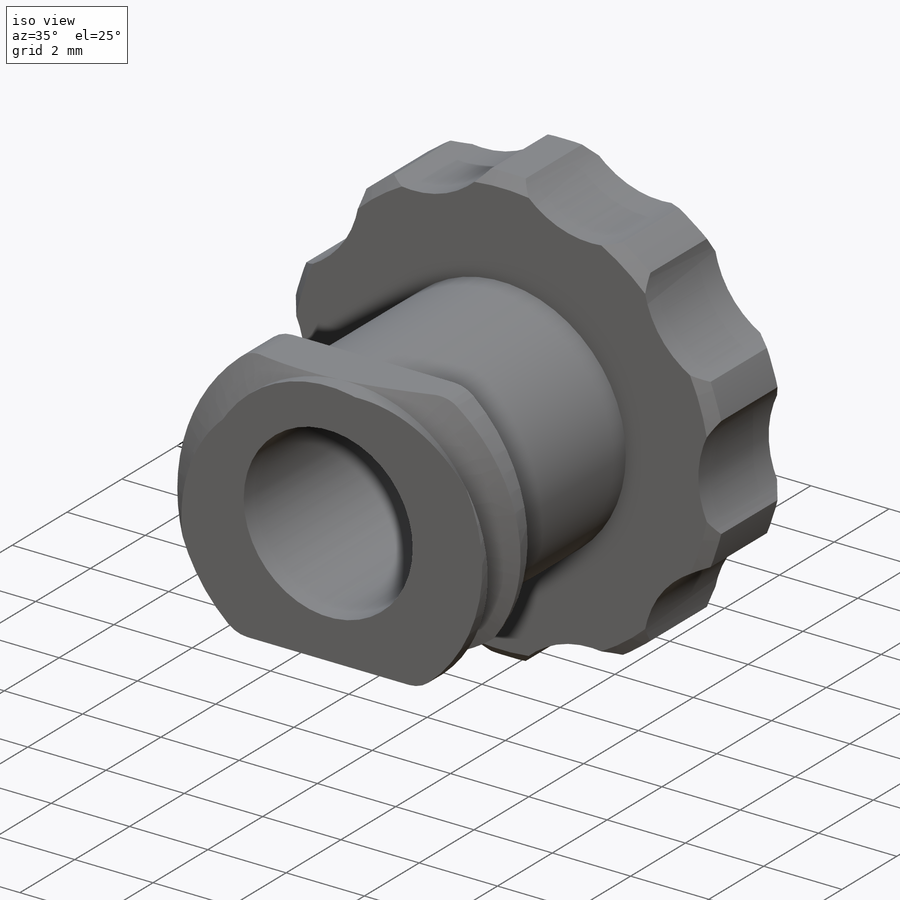
[diagram: iso view]
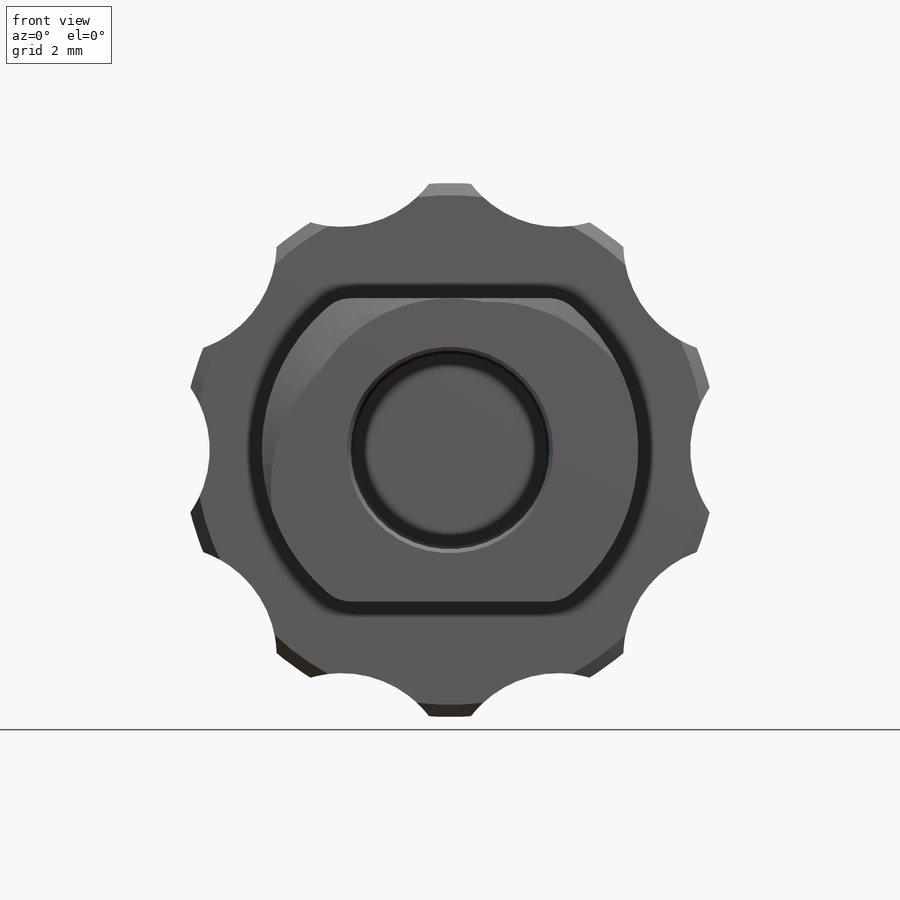
[diagram: front view]
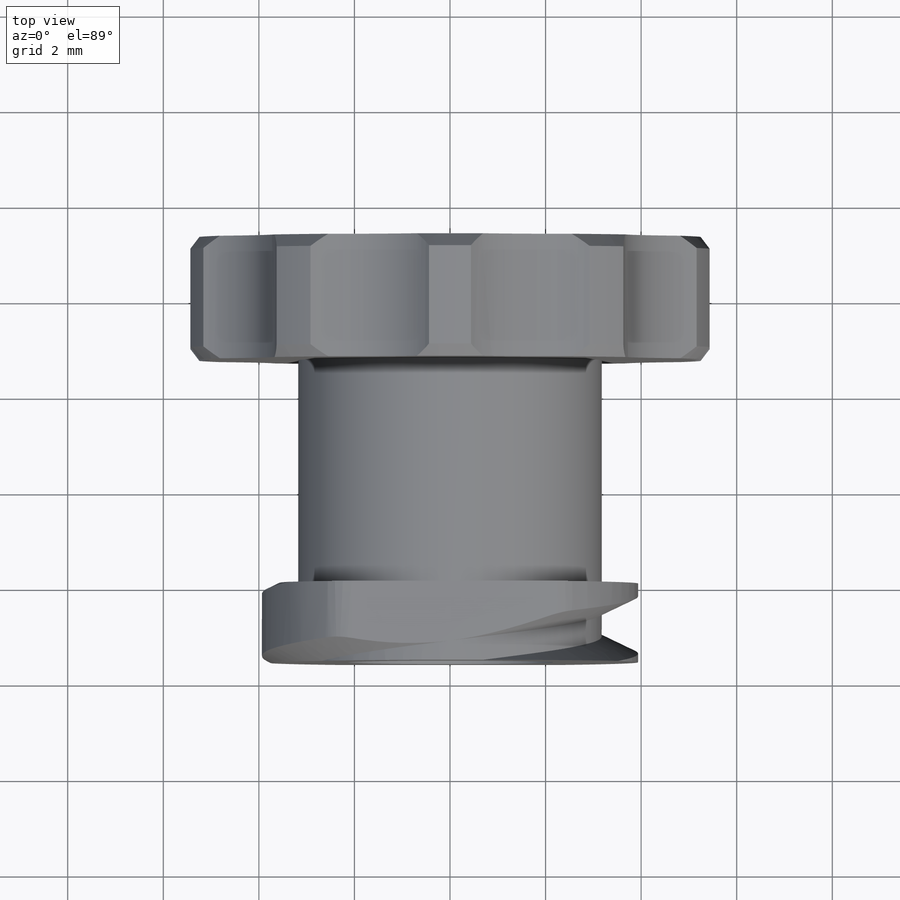
[diagram: top view]
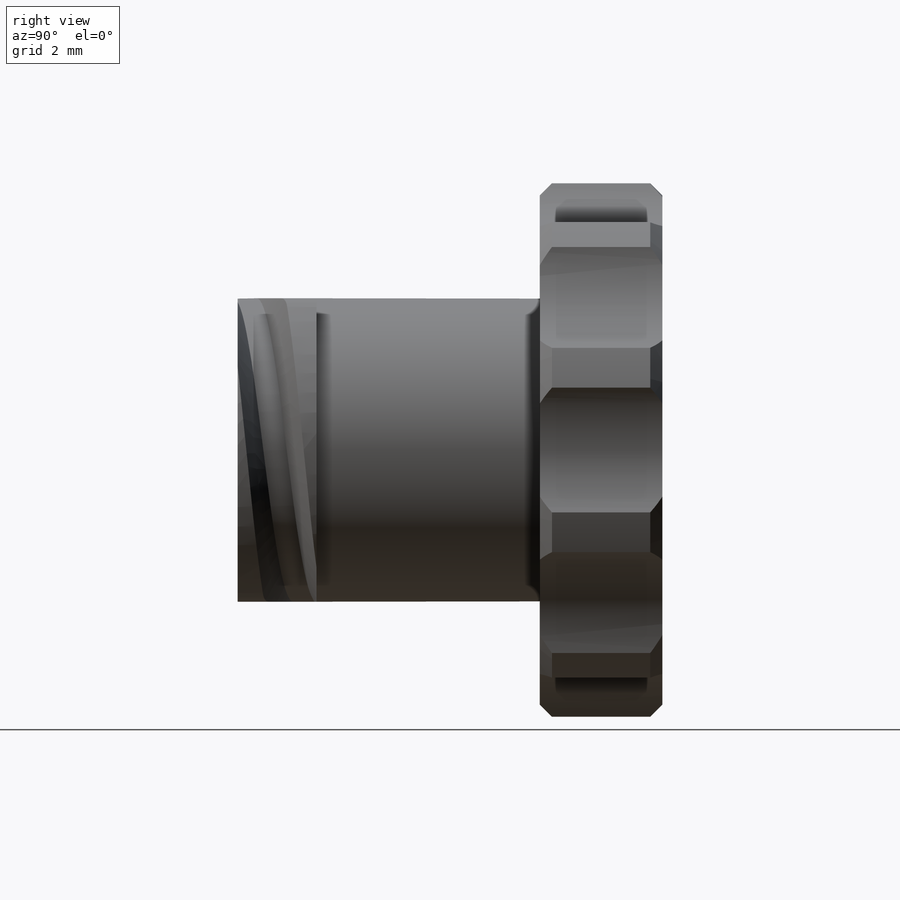
[diagram: right view]
SOLIDWORKS PART (.sldprt)
format: sldprt  version: not decoded by parser v0  size: 706,048 bytes
history: native  units: mm
features: sketch x10, extrude x4, cut_extrude x3, plane x2, material x1, cut_revolve x1, helix x1, sweep x1, fillet x1, boolean_combine x1 (+15 scaffold rows collapsed)
feature tree (40):
  scaffold x15  (default folders/planes/origin — collapsed)
  material  "Material <not specified>"
  sketch  "Sketch20"  dims[D1=~7.634113mm D2=11.176mm]
  extrude  "Boss-Extrude1"  Depth=2.5654mm
  sketch  "Sketch21"  dims[D1=0.0mm]
  extrude  "Boss-Extrude2"  [1 undecoded]
  sketch  "Sketch23"  dims[D1=6.35mm]
  extrude  "Boss-Extrude3"  Depth=8.89mm
  plane  "Plane1"  Offset=0.762mm
  sketch  "Sketch24"  dims[D1=4.318mm]
  cut_extrude  "Cut-Extrude1"  [1 undecoded]
  sketch  "Sketch25"  dims[c1.D1=~1.199986mm c2.D1=45.0deg c2.D2=0.254mm]
  cut_revolve  "Cut-Revolve1"  Angle=360deg
  sketch  "Sketch26"  dims[D1=7.874mm]
  extrude  "Boss-Extrude4"  Depth=1.651mm
  plane  "Plane2"  Offset=0.762mm
  sketch  "Sketch27"
  helix  "Helix/Spiral1"  Pitch=6.875mm
  sketch  "Sketch28"  dims[c1.D1=~0.580655mm c2.D1=25.0deg c2.D2=1.2mm]
  sweep  "Cut-Sweep1"
  sketch  "Sketch29"  dims[D1=~15.990455mm]
  cut_extrude  "Cut-Extrude2"  Depth=2.54mm
  sketch  "Sketch30"  dims[D1=15.875mm]
  cut_extrude  "Cut-Extrude3"  Depth=2.54mm
  fillet  "Fillet1"  Radius=0.762mm
  boolean_combine  "Combine3"
decode coverage: 17 of 22 modeling features carry decoded parameters
note: ~ marks probable driven/reference dimensions
note: 2 parameter values undecoded
note: suppression state not decoded; provenance and decode notes live in map.json
